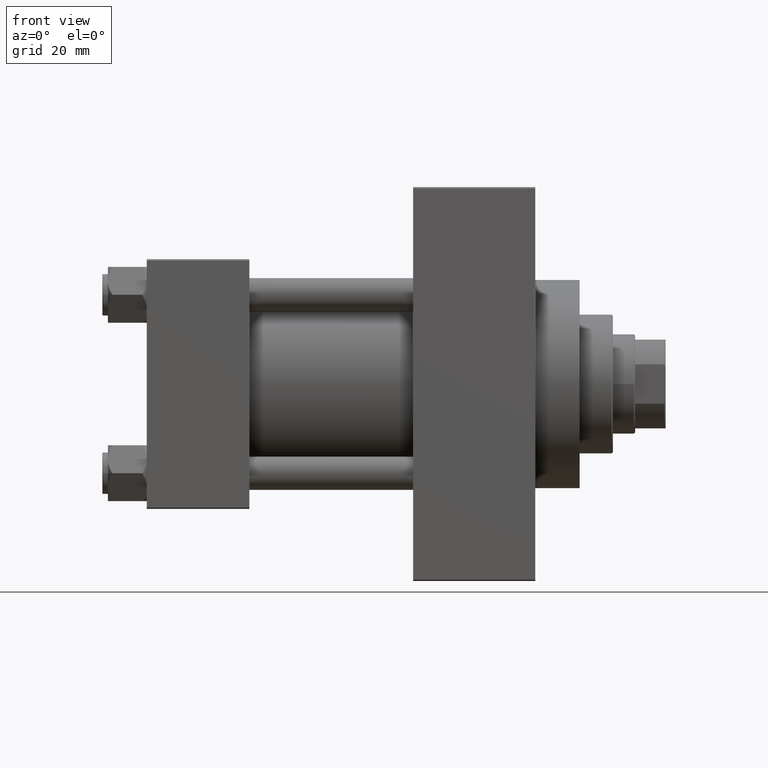
[diagram: clean part render]
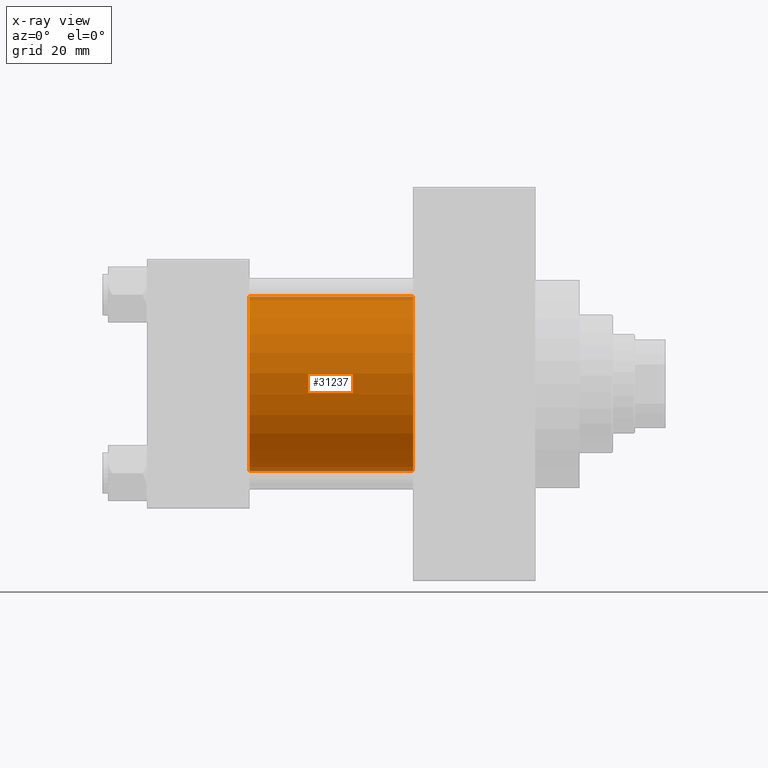
[diagram: x-ray — body ghosted, one internal face saturated and labeled with its STEP entity id]
A machine part, front view, then the same camera in x-ray: the body is ghosted and one INTERNAL B-rep face — a face not visible from any outside direction — is saturated and labeled: STEP entity #31237.
In plain terms, the highlighted cylindrical surface (partial cylindrical patch) has radius 31.5 mm, axis along (-1, -0, -0).
Its self-contained STEP definition (entity closure, byte-faithful):
#593 = FACE_OUTER_BOUND ( 'NONE', #34156, .T. ) ;
#3861 = LINE ( 'NONE', #44387, #22165 ) ;
#4560 = VECTOR ( 'NONE', #35216, 1000.000000000000000 ) ;
#6039 = EDGE_CURVE ( 'NONE', #21537, #11235, #21996, .T. ) ;
#6074 = VERTEX_POINT ( 'NONE', #15015 ) ;
#6663 = ORIENTED_EDGE ( 'NONE', *, *, #6039, .F. ) ;
#8164 = DIRECTION ( 'NONE',  ( -1.000000000000000000, -0.000000000000000000, -0.000000000000000000 ) ) ;
#8189 = AXIS2_PLACEMENT_3D ( 'NONE', #14782, #36355, #11660 ) ;
#8353 = CARTESIAN_POINT ( 'NONE',  ( 96.00000000000000000, -2.602085213965210642E-15, 31.50000000000000000 ) ) ;
#10023 = LINE ( 'NONE', #17701, #4560 ) ;
#10527 = DIRECTION ( 'NONE',  ( 1.000000000000000000, 0.000000000000000000, 0.000000000000000000 ) ) ;
#11235 = VERTEX_POINT ( 'NONE', #42412 ) ;
#11377 = EDGE_CURVE ( 'NONE', #35663, #21537, #10023, .T. ) ;
#11660 = DIRECTION ( 'NONE',  ( 0.000000000000000000, 0.000000000000000000, -1.000000000000000000 ) ) ;
#13475 = ORIENTED_EDGE ( 'NONE', *, *, #44956, .T. ) ;
#14366 = CARTESIAN_POINT ( 'NONE',  ( 96.00000000000000000, -2.602085213965210642E-15, 0.000000000000000000 ) ) ;
#14782 = CARTESIAN_POINT ( 'NONE',  ( 37.00000000000000000, -2.602085213965210642E-15, 0.000000000000000000 ) ) ;
#14806 = EDGE_CURVE ( 'NONE', #6074, #11235, #3861, .T. ) ;
#15015 = CARTESIAN_POINT ( 'NONE',  ( 96.00000000000000000, 1.255552203348951850E-15, -31.50000000000000000 ) ) ;
#16151 = CARTESIAN_POINT ( 'NONE',  ( 37.00000000000000000, -2.602085213965210642E-15, 31.50000000000000000 ) ) ;
#17701 = CARTESIAN_POINT ( 'NONE',  ( 96.00000000000000000, -2.602085213965210642E-15, 31.50000000000000000 ) ) ;
#18592 = CARTESIAN_POINT ( 'NONE',  ( 96.00000000000000000, -2.602085213965210642E-15, 0.000000000000000000 ) ) ;
#20318 = ORIENTED_EDGE ( 'NONE', *, *, #11377, .F. ) ;
#21537 = VERTEX_POINT ( 'NONE', #16151 ) ;
#21996 = CIRCLE ( 'NONE', #8189, 31.50000000000000000 ) ;
#22165 = VECTOR ( 'NONE', #8164, 1000.000000000000000 ) ;
#25166 = DIRECTION ( 'NONE',  ( 0.000000000000000000, 0.000000000000000000, -1.000000000000000000 ) ) ;
#27206 = ORIENTED_EDGE ( 'NONE', *, *, #14806, .T. ) ;
#29098 = AXIS2_PLACEMENT_3D ( 'NONE', #14366, #10527, #25166 ) ;
#31237 = ADVANCED_FACE ( 'NONE', ( #593 ), #40643, .F. ) ;
#34156 = EDGE_LOOP ( 'NONE', ( #13475, #27206, #6663, #20318 ) ) ;
#35216 = DIRECTION ( 'NONE',  ( -1.000000000000000000, -0.000000000000000000, -0.000000000000000000 ) ) ;
#35663 = VERTEX_POINT ( 'NONE', #8353 ) ;
#36355 = DIRECTION ( 'NONE',  ( 1.000000000000000000, 0.000000000000000000, 0.000000000000000000 ) ) ;
#37522 = DIRECTION ( 'NONE',  ( 0.000000000000000000, 0.000000000000000000, 1.000000000000000000 ) ) ;
#37757 = DIRECTION ( 'NONE',  ( -1.000000000000000000, -0.000000000000000000, -0.000000000000000000 ) ) ;
#39387 = AXIS2_PLACEMENT_3D ( 'NONE', #18592, #37757, #37522 ) ;
#40643 = CYLINDRICAL_SURFACE ( 'NONE', #39387, 31.50000000000000000 ) ;
#42412 = CARTESIAN_POINT ( 'NONE',  ( 37.00000000000000000, 1.255552203348951850E-15, -31.50000000000000000 ) ) ;
#43653 = CIRCLE ( 'NONE', #29098, 31.50000000000000000 ) ;
#44387 = CARTESIAN_POINT ( 'NONE',  ( 96.00000000000000000, 1.255552203348951850E-15, -31.50000000000000000 ) ) ;
#44956 = EDGE_CURVE ( 'NONE', #35663, #6074, #43653, .T. ) ;